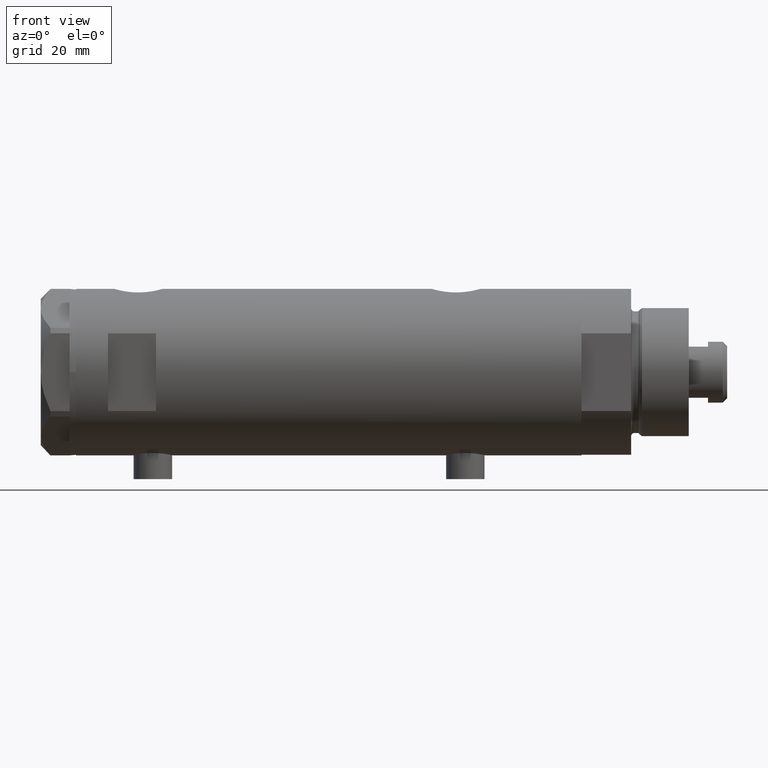
[diagram: clean part render]
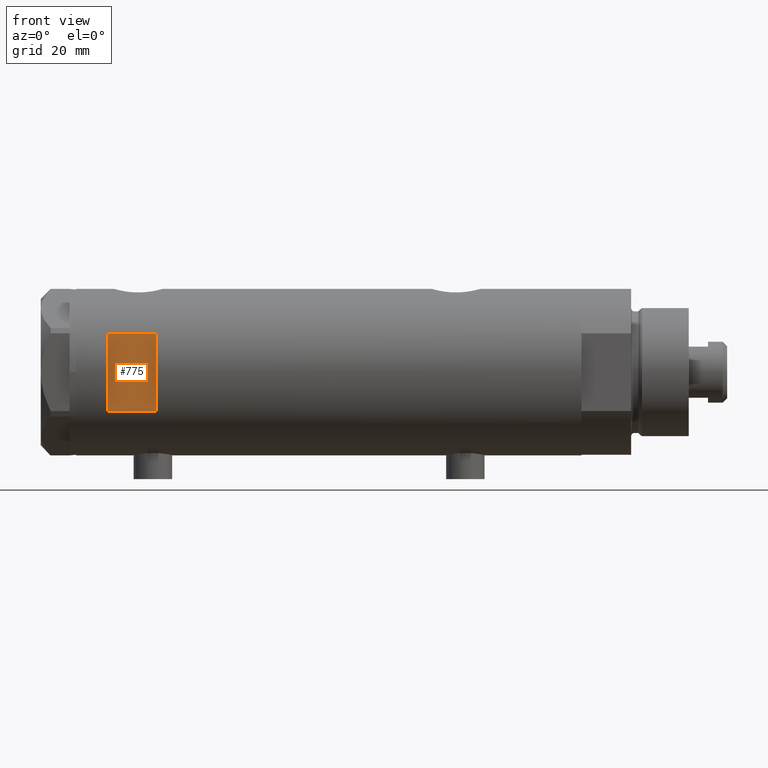
[diagram: same view with one face highlighted and labeled with its STEP entity id]
A machine part, front view. The second image highlights one B-rep face of the part: STEP entity #775.
In plain terms, the highlighted planar face has unit normal (-0, 1, 0).
Its self-contained STEP definition (entity closure, byte-faithful):
#26 = VECTOR ( 'NONE', #3958, 1000.000000000000000 ) ;
#157 = EDGE_CURVE ( 'NONE', #1073, #3519, #985, .T. ) ;
#313 = DIRECTION ( 'NONE',  ( 1.000000000000000000, -0.000000000000000000, -0.000000000000000000 ) ) ;
#344 = VECTOR ( 'NONE', #3213, 1000.000000000000000 ) ;
#417 = EDGE_LOOP ( 'NONE', ( #4313, #1352, #731, #3120 ) ) ;
#449 = CARTESIAN_POINT ( 'NONE',  ( 12.12435565298214080, -23.00000000000000355, 68.95000000000003126 ) ) ;
#566 = DIRECTION ( 'NONE',  ( 0.000000000000000000, -0.000000000000000000, 1.000000000000000000 ) ) ;
#715 = CARTESIAN_POINT ( 'NONE',  ( -12.12435565298214080, -23.00000000000000355, 53.95000000000001705 ) ) ;
#731 = ORIENTED_EDGE ( 'NONE', *, *, #2890, .T. ) ;
#775 = ADVANCED_FACE ( 'NONE', ( #2931 ), #3652, .F. ) ;
#976 = EDGE_CURVE ( 'NONE', #1073, #3647, #4387, .T. ) ;
#985 = LINE ( 'NONE', #2476, #26 ) ;
#1073 = VERTEX_POINT ( 'NONE', #2674 ) ;
#1352 = ORIENTED_EDGE ( 'NONE', *, *, #4445, .T. ) ;
#1420 = LINE ( 'NONE', #4692, #4187 ) ;
#1587 = VERTEX_POINT ( 'NONE', #1935 ) ;
#1730 = DIRECTION ( 'NONE',  ( 0.000000000000000000, 0.000000000000000000, 1.000000000000000000 ) ) ;
#1853 = CARTESIAN_POINT ( 'NONE',  ( -26.00000000000000355, -23.00000000000000355, 68.95000000000003126 ) ) ;
#1935 = CARTESIAN_POINT ( 'NONE',  ( 12.12435565298214080, -23.00000000000000355, 53.95000000000001705 ) ) ;
#2476 = CARTESIAN_POINT ( 'NONE',  ( -12.12435565298214080, -23.00000000000000355, -78.95000000000000284 ) ) ;
#2539 = DIRECTION ( 'NONE',  ( 0.000000000000000000, 1.000000000000000000, 0.000000000000000000 ) ) ;
#2674 = CARTESIAN_POINT ( 'NONE',  ( -12.12435565298214080, -23.00000000000000355, 68.95000000000003126 ) ) ;
#2837 = CARTESIAN_POINT ( 'NONE',  ( 12.12435565298214080, -23.00000000000000355, -78.95000000000000284 ) ) ;
#2890 = EDGE_CURVE ( 'NONE', #1587, #3647, #3904, .T. ) ;
#2931 = FACE_OUTER_BOUND ( 'NONE', #417, .T. ) ;
#3120 = ORIENTED_EDGE ( 'NONE', *, *, #976, .F. ) ;
#3213 = DIRECTION ( 'NONE',  ( 1.000000000000000000, -0.000000000000000000, -0.000000000000000000 ) ) ;
#3331 = VECTOR ( 'NONE', #1730, 1000.000000000000000 ) ;
#3519 = VERTEX_POINT ( 'NONE', #715 ) ;
#3647 = VERTEX_POINT ( 'NONE', #449 ) ;
#3652 = PLANE ( 'NONE',  #4248 ) ;
#3904 = LINE ( 'NONE', #2837, #3331 ) ;
#3958 = DIRECTION ( 'NONE',  ( -0.000000000000000000, -0.000000000000000000, -1.000000000000000000 ) ) ;
#4016 = CARTESIAN_POINT ( 'NONE',  ( -26.00000000000000355, -23.00000000000000355, 68.95000000000003126 ) ) ;
#4187 = VECTOR ( 'NONE', #313, 1000.000000000000000 ) ;
#4248 = AXIS2_PLACEMENT_3D ( 'NONE', #1853, #2539, #566 ) ;
#4313 = ORIENTED_EDGE ( 'NONE', *, *, #157, .T. ) ;
#4387 = LINE ( 'NONE', #4016, #344 ) ;
#4445 = EDGE_CURVE ( 'NONE', #3519, #1587, #1420, .T. ) ;
#4692 = CARTESIAN_POINT ( 'NONE',  ( -26.00000000000000355, -23.00000000000000355, 53.95000000000002416 ) ) ;